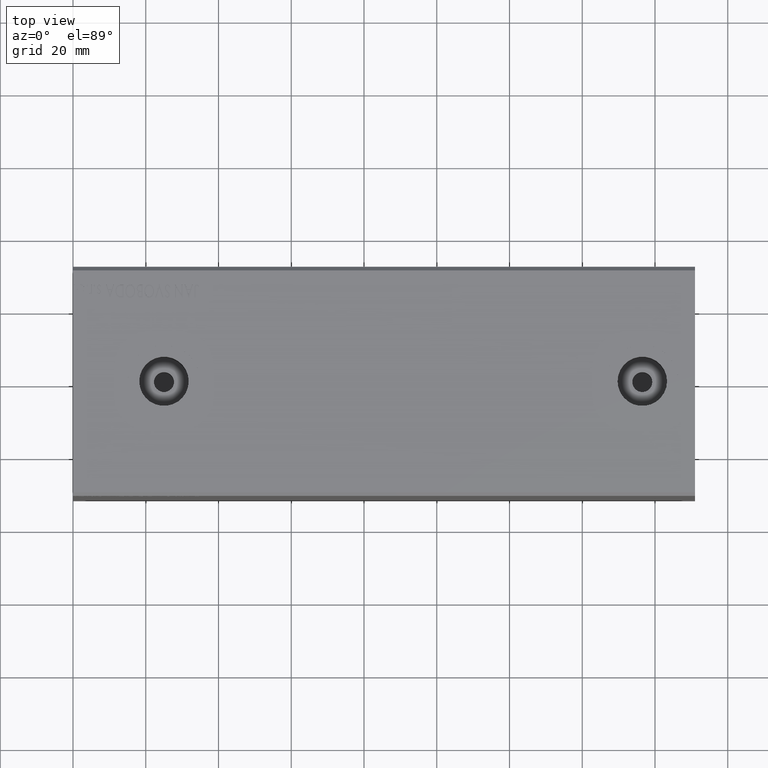
[diagram: clean part render]
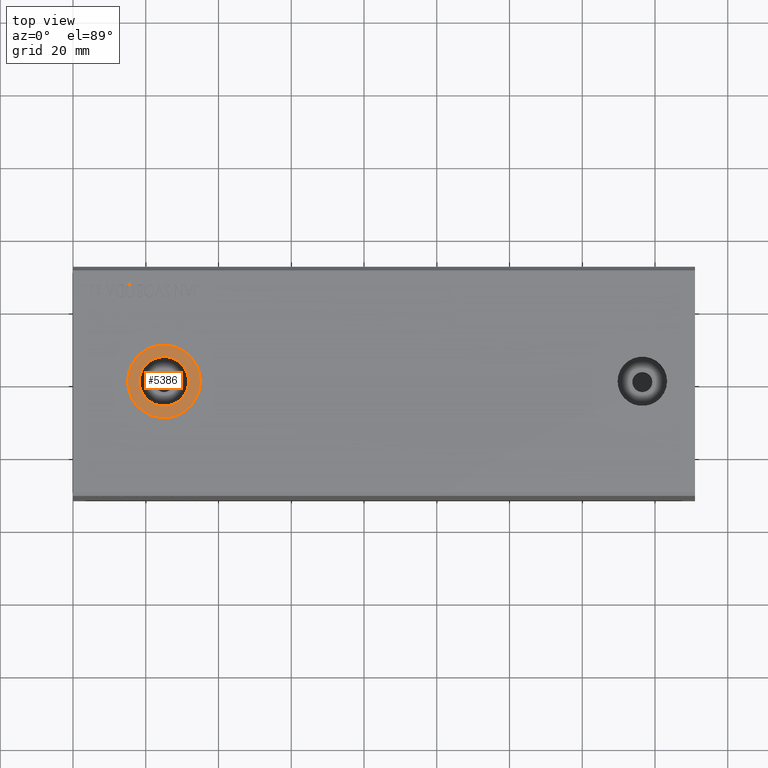
[diagram: same view with one face highlighted and labeled with its STEP entity id]
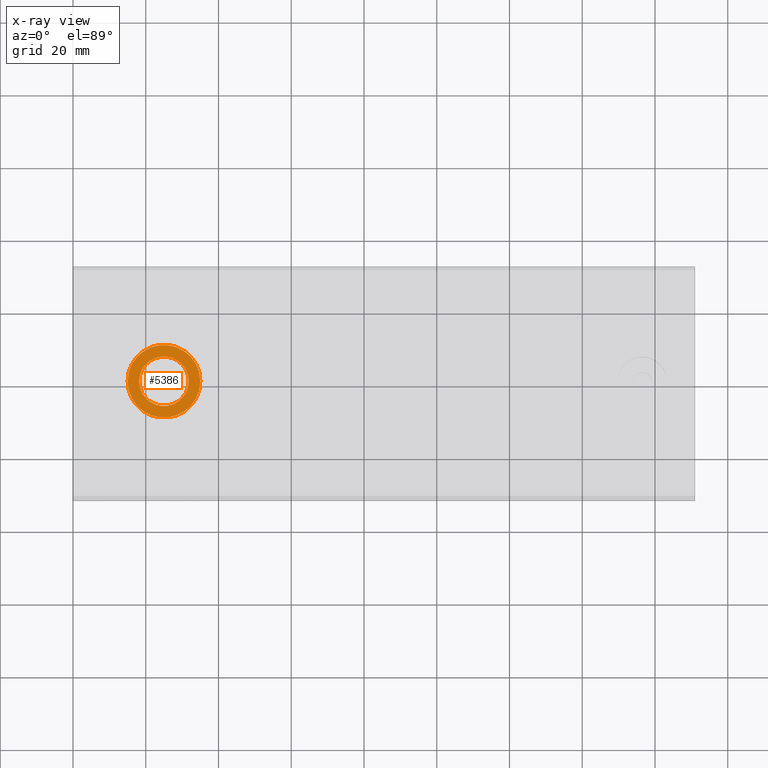
[diagram: x-ray of the same camera — body ghosted, the highlighted face saturated]
A machine part, top view. The second image highlights one B-rep face of the part: STEP entity #5386.
The next image is the same camera in x-ray: the body ghosted, the highlighted face saturated — about 0% of this face is hidden behind the body in this view.
In plain terms, the highlighted planar face has unit normal (0, 0, 1).
Its self-contained STEP definition (entity closure, byte-faithful):
#308 = CARTESIAN_POINT ( 'NONE',  ( 18.19999999999999929, 1.700121561408603067E-15, 42.39999999999999147 ) ) ;
#390 = EDGE_CURVE ( 'NONE', #10606, #33714, #28782, .T. ) ;
#4800 = DIRECTION ( 'NONE',  ( 1.000000000000000000, 0.000000000000000000, 0.000000000000000000 ) ) ;
#4882 = CIRCLE ( 'NONE', #15818, 6.800000000000000711 ) ;
#5386 = ADVANCED_FACE ( 'NONE', ( #36796, #6539 ), #23474, .T. ) ;
#6539 = FACE_OUTER_BOUND ( 'NONE', #20130, .T. ) ;
#7635 = AXIS2_PLACEMENT_3D ( 'NONE', #32928, #16402, #10175 ) ;
#9205 = AXIS2_PLACEMENT_3D ( 'NONE', #29433, #13329, #22997 ) ;
#10175 = DIRECTION ( 'NONE',  ( 1.000000000000000000, 0.000000000000000000, -0.000000000000000000 ) ) ;
#10370 = AXIS2_PLACEMENT_3D ( 'NONE', #14450, #30352, #4800 ) ;
#10606 = VERTEX_POINT ( 'NONE', #29504 ) ;
#12013 = ORIENTED_EDGE ( 'NONE', *, *, #34952, .F. ) ;
#12392 = EDGE_CURVE ( 'NONE', #25299, #37089, #20161, .T. ) ;
#13039 = CARTESIAN_POINT ( 'NONE',  ( 31.80000000000000071, 8.673617379884031528E-16, 42.39999999999999147 ) ) ;
#13329 = DIRECTION ( 'NONE',  ( 0.000000000000000000, 0.000000000000000000, 1.000000000000000000 ) ) ;
#14450 = CARTESIAN_POINT ( 'NONE',  ( 25.00000000000000000, 8.673617379884031528E-16, 42.39999999999999147 ) ) ;
#15818 = AXIS2_PLACEMENT_3D ( 'NONE', #16047, #22910, #39467 ) ;
#16047 = CARTESIAN_POINT ( 'NONE',  ( 25.00000000000000000, 8.673617379884031528E-16, 42.39999999999999147 ) ) ;
#16402 = DIRECTION ( 'NONE',  ( 0.000000000000000000, 0.000000000000000000, 1.000000000000000000 ) ) ;
#18629 = CARTESIAN_POINT ( 'NONE',  ( 25.00000000000000000, 8.673617379884031528E-16, 42.39999999999999147 ) ) ;
#20130 = EDGE_LOOP ( 'NONE', ( #33589, #22725 ) ) ;
#20161 = CIRCLE ( 'NONE', #35266, 6.800000000000000711 ) ;
#21209 = DIRECTION ( 'NONE',  ( 0.000000000000000000, 0.000000000000000000, 1.000000000000000000 ) ) ;
#21392 = CARTESIAN_POINT ( 'NONE',  ( 15.00000000000000178, 2.092008537135756212E-15, 42.39999999999999147 ) ) ;
#22725 = ORIENTED_EDGE ( 'NONE', *, *, #33302, .T. ) ;
#22910 = DIRECTION ( 'NONE',  ( 0.000000000000000000, 0.000000000000000000, 1.000000000000000000 ) ) ;
#22997 = DIRECTION ( 'NONE',  ( 1.000000000000000000, 0.000000000000000000, 0.000000000000000000 ) ) ;
#23474 = PLANE ( 'NONE',  #7635 ) ;
#25299 = VERTEX_POINT ( 'NONE', #308 ) ;
#28782 = CIRCLE ( 'NONE', #10370, 10.00000000000000178 ) ;
#29433 = CARTESIAN_POINT ( 'NONE',  ( 25.00000000000000000, 8.673617379884031528E-16, 42.39999999999999147 ) ) ;
#29504 = CARTESIAN_POINT ( 'NONE',  ( 35.00000000000000000, 8.673617379884031528E-16, 42.39999999999999147 ) ) ;
#30352 = DIRECTION ( 'NONE',  ( 0.000000000000000000, 0.000000000000000000, 1.000000000000000000 ) ) ;
#32928 = CARTESIAN_POINT ( 'NONE',  ( 25.00000000000000000, 8.673617379884031528E-16, 42.39999999999999147 ) ) ;
#33302 = EDGE_CURVE ( 'NONE', #33714, #10606, #35269, .T. ) ;
#33589 = ORIENTED_EDGE ( 'NONE', *, *, #390, .T. ) ;
#33714 = VERTEX_POINT ( 'NONE', #21392 ) ;
#34324 = DIRECTION ( 'NONE',  ( 1.000000000000000000, 0.000000000000000000, 0.000000000000000000 ) ) ;
#34952 = EDGE_CURVE ( 'NONE', #37089, #25299, #4882, .T. ) ;
#34986 = ORIENTED_EDGE ( 'NONE', *, *, #12392, .F. ) ;
#35266 = AXIS2_PLACEMENT_3D ( 'NONE', #18629, #21209, #34324 ) ;
#35269 = CIRCLE ( 'NONE', #9205, 10.00000000000000178 ) ;
#36796 = FACE_BOUND ( 'NONE', #38737, .T. ) ;
#37089 = VERTEX_POINT ( 'NONE', #13039 ) ;
#38737 = EDGE_LOOP ( 'NONE', ( #12013, #34986 ) ) ;
#39467 = DIRECTION ( 'NONE',  ( 1.000000000000000000, 0.000000000000000000, 0.000000000000000000 ) ) ;